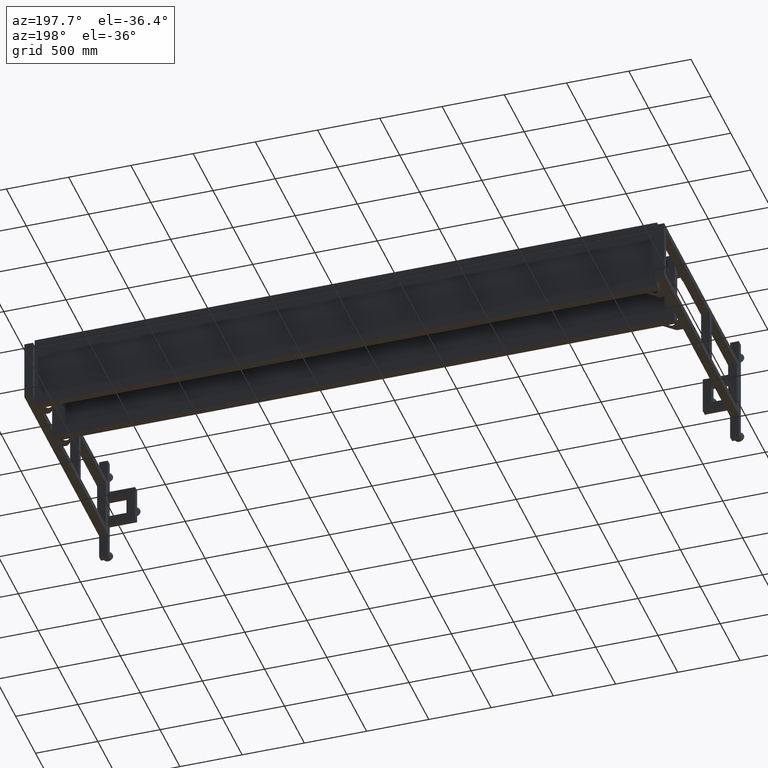
[diagram: clean part render]
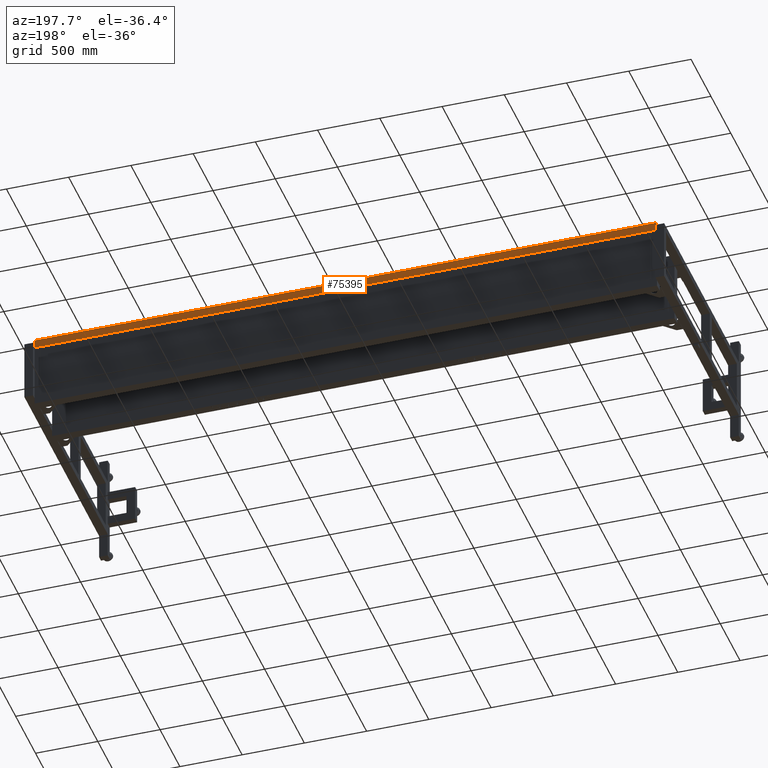
[diagram: same view with one face highlighted and labeled with its STEP entity id]
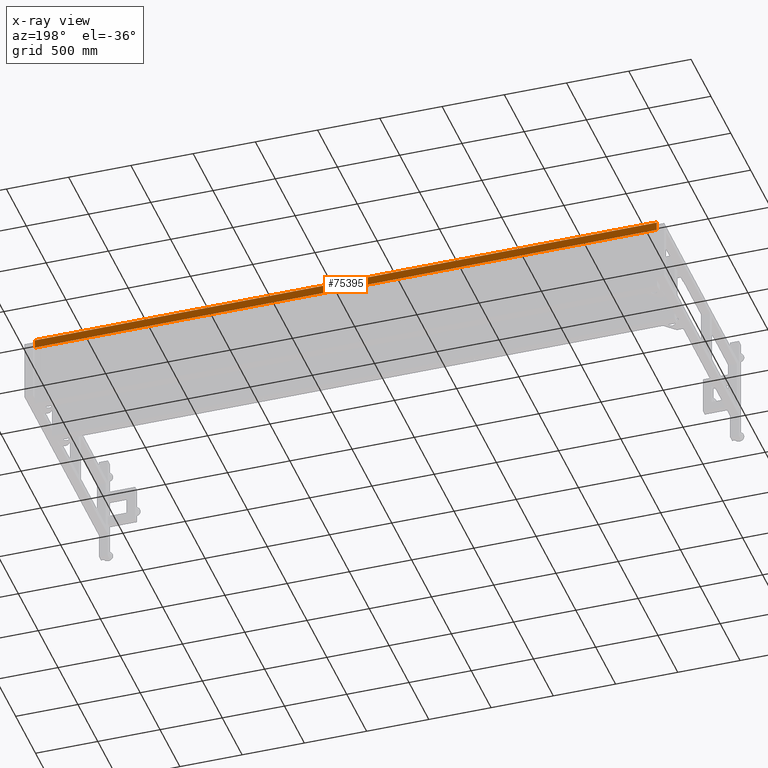
[diagram: x-ray of the same camera — body ghosted, the highlighted face saturated]
A machine part, auxiliary view. The second image highlights one B-rep face of the part: STEP entity #75395.
The next image is the same camera in x-ray: the body ghosted, the highlighted face saturated — about 0% of this face is hidden behind the body in this view.
In plain terms, the highlighted planar face has unit normal (0, -1, -0).
Its self-contained STEP definition (entity closure, byte-faithful):
#434 = DIRECTION ( 'NONE',  ( -1.000000000000000000, -4.543257172554223644E-16, 0.000000000000000000 ) ) ;
#843 = VERTEX_POINT ( 'NONE', #115354 ) ;
#3071 = EDGE_CURVE ( 'NONE', #843, #100956, #118983, .T. ) ;
#11309 = EDGE_CURVE ( 'NONE', #100956, #50588, #100855, .T. ) ;
#15625 = DIRECTION ( 'NONE',  ( -1.000000000000000000, -4.543257172554223644E-16, 0.000000000000000000 ) ) ;
#19095 = DIRECTION ( 'NONE',  ( -1.169989407085949709E-30, 4.000000000000000311E-15, -1.000000000000000000 ) ) ;
#24108 = LINE ( 'NONE', #99025, #109709 ) ;
#27964 = ORIENTED_EDGE ( 'NONE', *, *, #3071, .T. ) ;
#28375 = DIRECTION ( 'NONE',  ( 4.543257172554223644E-16, -1.000000000000000000, -4.000000000000000311E-15 ) ) ;
#34831 = CARTESIAN_POINT ( 'NONE',  ( 3729.827512562816082, 996.9410804020126307, 230.0000000000011653 ) ) ;
#35735 = CARTESIAN_POINT ( 'NONE',  ( 1929.827512562814263, 996.9410804020130854, 230.0000000000011653 ) ) ;
#50588 = VERTEX_POINT ( 'NONE', #90475 ) ;
#53949 = CARTESIAN_POINT ( 'NONE',  ( -1266.172487437185964, 996.9410804020120622, 230.0000000000011653 ) ) ;
#54062 = EDGE_CURVE ( 'NONE', #107629, #50588, #70368, .T. ) ;
#54583 = PLANE ( 'NONE',  #118884 ) ;
#56393 = ORIENTED_EDGE ( 'NONE', *, *, #72709, .F. ) ;
#61641 = VECTOR ( 'NONE', #19095, 1000.000000000000000 ) ;
#64914 = CARTESIAN_POINT ( 'NONE',  ( -1266.172487437185964, 996.9410804020118348, 300.0000000000011937 ) ) ;
#70368 = LINE ( 'NONE', #53949, #112918 ) ;
#72632 = CARTESIAN_POINT ( 'NONE',  ( 3729.827512562816082, 996.9410804020126307, 230.0000000000011653 ) ) ;
#72709 = EDGE_CURVE ( 'NONE', #843, #107629, #24108, .T. ) ;
#75395 = ADVANCED_FACE ( 'NONE', ( #84347 ), #54583, .F. ) ;
#84347 = FACE_OUTER_BOUND ( 'NONE', #117671, .T. ) ;
#89915 = DIRECTION ( 'NONE',  ( -1.000000000000000000, -4.543257172554223644E-16, 0.000000000000000000 ) ) ;
#90475 = CARTESIAN_POINT ( 'NONE',  ( -1266.172487437185964, 996.9410804020120622, 230.0000000000011653 ) ) ;
#91655 = ORIENTED_EDGE ( 'NONE', *, *, #11309, .T. ) ;
#97035 = VECTOR ( 'NONE', #89915, 1000.000000000000000 ) ;
#99025 = CARTESIAN_POINT ( 'NONE',  ( 1929.827512562814263, 996.9410804020128580, 300.0000000000011937 ) ) ;
#100214 = DIRECTION ( 'NONE',  ( 0.000000000000000000, 4.000000000000000311E-15, -1.000000000000000000 ) ) ;
#100855 = LINE ( 'NONE', #118514, #97035 ) ;
#100956 = VERTEX_POINT ( 'NONE', #34831 ) ;
#105506 = ORIENTED_EDGE ( 'NONE', *, *, #54062, .F. ) ;
#107629 = VERTEX_POINT ( 'NONE', #64914 ) ;
#109709 = VECTOR ( 'NONE', #15625, 1000.000000000000000 ) ;
#112918 = VECTOR ( 'NONE', #100214, 1000.000000000000000 ) ;
#115354 = CARTESIAN_POINT ( 'NONE',  ( 3729.827512562816082, 996.9410804020124033, 300.0000000000011937 ) ) ;
#117671 = EDGE_LOOP ( 'NONE', ( #91655, #105506, #56393, #27964 ) ) ;
#118514 = CARTESIAN_POINT ( 'NONE',  ( 1929.827512562814263, 996.9410804020130854, 230.0000000000011653 ) ) ;
#118884 = AXIS2_PLACEMENT_3D ( 'NONE', #35735, #28375, #434 ) ;
#118983 = LINE ( 'NONE', #72632, #61641 ) ;